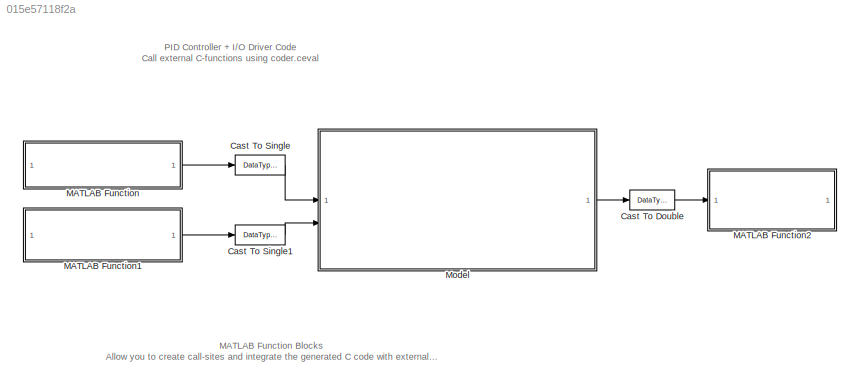
MODEL slx_015e57118f2a
KIND model
CONFIG AbsTol = auto
CONFIG EnableMultiTasking = off
CONFIG FixedStep = auto
CONFIG MaxStep = auto
CONFIG MinStep = auto
CONFIG RelTol = 1e-3
CONFIG SampleTimeConstraint = Unconstrained
CONFIG SolverName = VariableStepAuto
CONFIG StartTime = 0.0
CONFIG StopTime = 10.0
BLOCK [DataTypeConversion] Cast To Double
  OutDataTypeStr = double
  RndMeth = Floor
  SaturateOnIntegerOverflow = off
BLOCK [DataTypeConversion] Cast To Single
  OutDataTypeStr = single
  RndMeth = Floor
  SaturateOnIntegerOverflow = off
BLOCK [DataTypeConversion] Cast To Single1
  OutDataTypeStr = single
  RndMeth = Floor
  SaturateOnIntegerOverflow = off
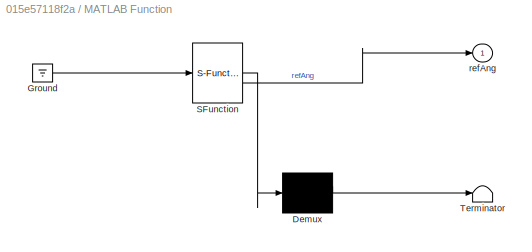
BLOCK [SubSystem] MATLAB Function
  ErrorFcn = Stateflow.Translate.translate
  PermitHierarchicalResolution = ExplicitOnly
  SFBlockType = MATLAB Function
  TreatAsAtomicUnit = on
BLOCK [Demux] MATLAB Function/ Demux 
  Outputs = 1
BLOCK [Ground] MATLAB Function/ Ground 
BLOCK [S-Function] MATLAB Function/ SFunction 
  EnableBusSupport = on
  FunctionName = sf_sfun
  PortCounts = [1 2]
  SFcnIsStateOwnerBlock = off
  SFunctionDeploymentMode = off
  Tag = Stateflow S-Function 2
BLOCK [Terminator] MATLAB Function/ Terminator 
BLOCK [Outport] MATLAB Function/refAng
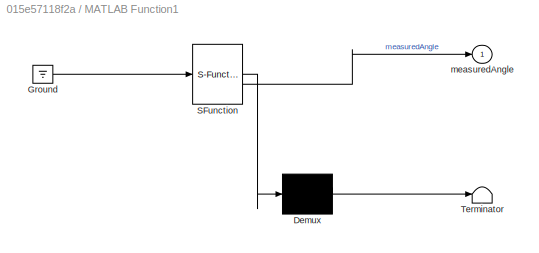
BLOCK [SubSystem] MATLAB Function1
  ErrorFcn = Stateflow.Translate.translate
  PermitHierarchicalResolution = ExplicitOnly
  SFBlockType = MATLAB Function
  TreatAsAtomicUnit = on
BLOCK [Demux] MATLAB Function1/ Demux 
  Outputs = 1
BLOCK [Ground] MATLAB Function1/ Ground 
BLOCK [S-Function] MATLAB Function1/ SFunction 
  EnableBusSupport = on
  FunctionName = sf_sfun
  PortCounts = [1 2]
  SFcnIsStateOwnerBlock = off
  SFunctionDeploymentMode = off
  Tag = Stateflow S-Function 1
BLOCK [Terminator] MATLAB Function1/ Terminator 
BLOCK [Outport] MATLAB Function1/measuredAngle
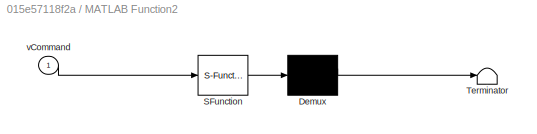
BLOCK [SubSystem] MATLAB Function2
  ErrorFcn = Stateflow.Translate.translate
  PermitHierarchicalResolution = ExplicitOnly
  SFBlockType = MATLAB Function
  TreatAsAtomicUnit = on
BLOCK [Demux] MATLAB Function2/ Demux 
  Outputs = 1
BLOCK [S-Function] MATLAB Function2/ SFunction 
  EnableBusSupport = on
  FunctionName = sf_sfun
  PortCounts = [1 1]
  SFcnIsStateOwnerBlock = off
  SFunctionDeploymentMode = off
  Tag = Stateflow S-Function 3
BLOCK [Terminator] MATLAB Function2/ Terminator 
BLOCK [Inport] MATLAB Function2/vCommand
BLOCK [ModelReference] Model
  ModelNameDialog = dcmtrCtrl_PID.slx
  ModelReferenceVersion = 3.0
ANNOTATION (root): PID Controller + I/O Driver Code Call external C-functions using coder.ceval
ANNOTATION (root): MATLAB Function Blocks Allow you to create call-sites and integrate the generated C code with external code.
LINE Cast To Double:1 -> MATLAB Function2:1
LINE Cast To Single1:1 -> Model:2
LINE Cast To Single:1 -> Model:1
LINE MATLAB Function1:1 -> Cast To Single1:1
LINE MATLAB Function:1 -> Cast To Single:1
LINE Model:1 -> Cast To Double:1
CHART MATLAB Function1 states=1 transitions=1
  STATE_LABEL 'eML_blk_kernel()'
  STATE_LABEL 'SCRIPT:\nfunction measuredAngle = readSensor2\n\n    coder.extrinsic(\'handCodeDir\');\n    % Function called "handCodeDir" is located in the same directlory as\n    % the C files. coder.extrinsic ensures you can call this function to\n    % return the directory location info back.\n    \n    measuredAngle  = 0;\n    \n    if( coder.target( \'Rtw\' ) )\n        customDir = coder.const(handCodeDir); % location of...<+420ch>'
CHART MATLAB Function states=1 transitions=1
  STATE_LABEL 'eML_blk_kernel()'
  STATE_LABEL 'SCRIPT:\nfunction refAng = readSensor1\n\n    coder.extrinsic(\'handCodeDir\');\n    % Function called "handCodeDir" is located in the same directlory as\n    % the C files. coder.extrinsic ensures you can call this function to\n    % return the directory location info back.\n    \n    refAng = pi/3;\n    \n    if( coder.target( \'Rtw\' ) )\n        customDir = coder.const(handCodeDir); % location of C files\n   ...<+410ch>'
CHART MATLAB Function2 states=1 transitions=1
  STATE_LABEL 'eML_blk_kernel()'
  STATE_LABEL 'SCRIPT:\nfunction writeVolt(vCommand)\n\n    coder.extrinsic(\'handCodeDir\');\n    % Function called "handCodeDir" is located in the same directlory as\n    % the C files. coder.extrinsic ensures you can call this function to\n    % return the directory location info back.\n    \n    if( coder.target( \'Rtw\' ) )\n        customDir = coder.const(handCodeDir); % location of C files\n        \n        coder.cincl...<+383ch>'
